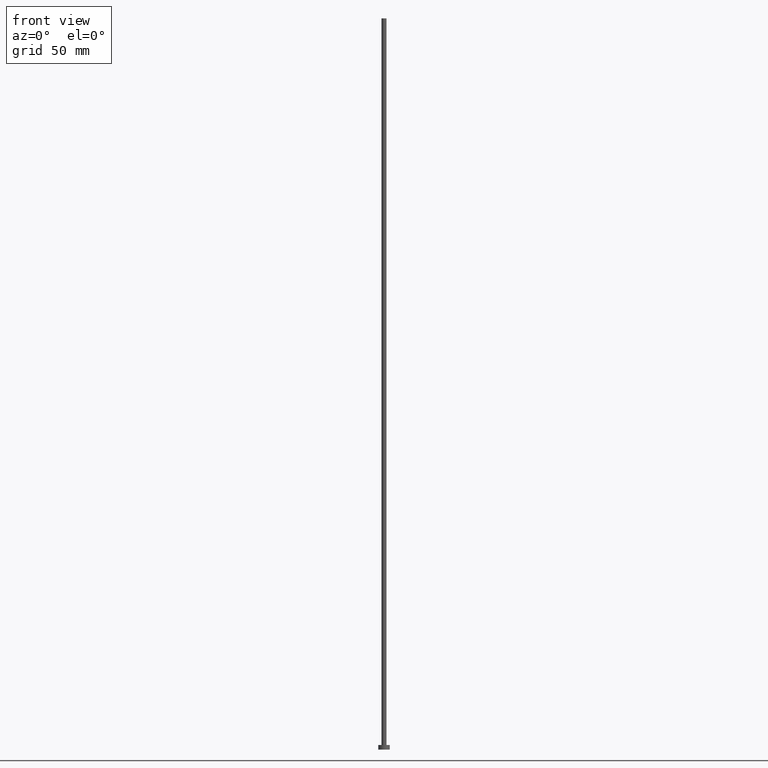
[diagram: clean part render]
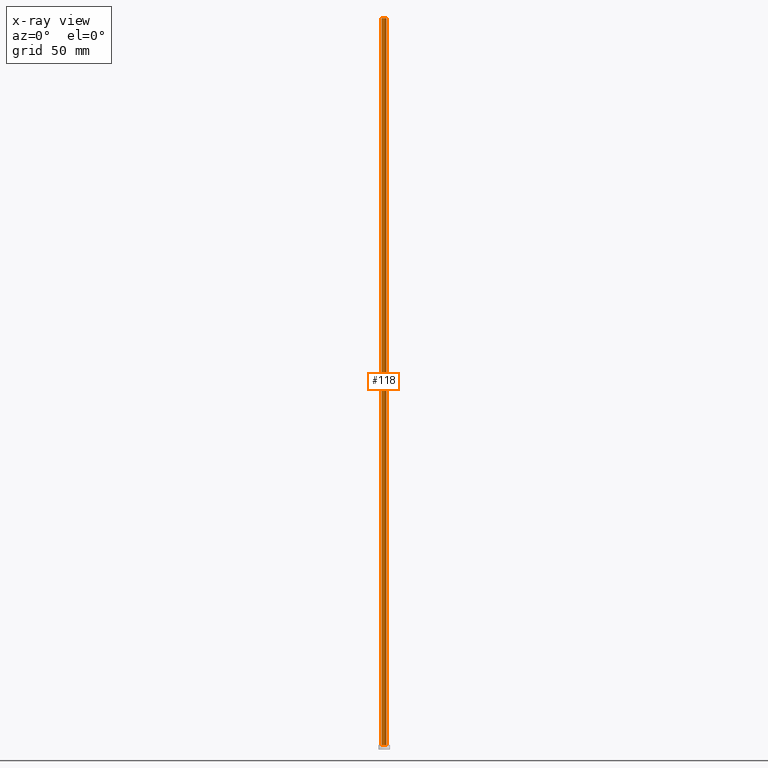
[diagram: x-ray — body ghosted, one internal face saturated and labeled with its STEP entity id]
A machine part, front view, then the same camera in x-ray: the body is ghosted and one INTERNAL B-rep face — a face not visible from any outside direction — is saturated and labeled: STEP entity #118.
In plain terms, the highlighted cylindrical surface (edge-blend (fillet) strip) has radius 1.1 mm, axis along (-0, -0, -1).
Its self-contained STEP definition (entity closure, byte-faithful):
#6 = FACE_OUTER_BOUND ( 'NONE', #230, .T. ) ;
#8 = CARTESIAN_POINT ( 'NONE',  ( 1.100000000000000089, 1.347111479062088503E-16, 2.000000000000000000 ) ) ;
#14 = CARTESIAN_POINT ( 'NONE',  ( -1.100000000000000089, 0.000000000000000000, 2.000000000000000000 ) ) ;
#32 = CIRCLE ( 'NONE', #179, 1.100000000000000089 ) ;
#53 = EDGE_CURVE ( 'NONE', #119, #73, #78, .T. ) ;
#56 = DIRECTION ( 'NONE',  ( -0.000000000000000000, -0.000000000000000000, -1.000000000000000000 ) ) ;
#59 = ORIENTED_EDGE ( 'NONE', *, *, #53, .T. ) ;
#60 = CIRCLE ( 'NONE', #242, 1.100000000000000089 ) ;
#67 = EDGE_CURVE ( 'NONE', #119, #128, #32, .T. ) ;
#73 = VERTEX_POINT ( 'NONE', #8 ) ;
#74 = ORIENTED_EDGE ( 'NONE', *, *, #67, .F. ) ;
#78 = LINE ( 'NONE', #156, #188 ) ;
#79 = EDGE_CURVE ( 'NONE', #73, #159, #60, .T. ) ;
#80 = CYLINDRICAL_SURFACE ( 'NONE', #99, 1.100000000000000089 ) ;
#82 = CARTESIAN_POINT ( 'NONE',  ( 0.000000000000000000, 0.000000000000000000, 315.0000000000000000 ) ) ;
#84 = CARTESIAN_POINT ( 'NONE',  ( 0.000000000000000000, 0.000000000000000000, 2.000000000000000000 ) ) ;
#86 = CARTESIAN_POINT ( 'NONE',  ( -1.100000000000000089, 0.000000000000000000, 315.0000000000000000 ) ) ;
#93 = VECTOR ( 'NONE', #121, 1000.000000000000000 ) ;
#99 = AXIS2_PLACEMENT_3D ( 'NONE', #157, #204, #129 ) ;
#107 = LINE ( 'NONE', #189, #93 ) ;
#115 = ORIENTED_EDGE ( 'NONE', *, *, #79, .T. ) ;
#118 = ADVANCED_FACE ( 'NONE', ( #6 ), #80, .T. ) ;
#119 = VERTEX_POINT ( 'NONE', #245 ) ;
#121 = DIRECTION ( 'NONE',  ( -0.000000000000000000, -0.000000000000000000, -1.000000000000000000 ) ) ;
#128 = VERTEX_POINT ( 'NONE', #86 ) ;
#129 = DIRECTION ( 'NONE',  ( -1.000000000000000000, 0.000000000000000000, 0.000000000000000000 ) ) ;
#145 = EDGE_CURVE ( 'NONE', #128, #159, #107, .T. ) ;
#156 = CARTESIAN_POINT ( 'NONE',  ( 1.100000000000000089, 1.347111479062088503E-16, 315.0000000000000000 ) ) ;
#157 = CARTESIAN_POINT ( 'NONE',  ( 0.000000000000000000, 0.000000000000000000, 315.0000000000000000 ) ) ;
#159 = VERTEX_POINT ( 'NONE', #14 ) ;
#161 = DIRECTION ( 'NONE',  ( 0.000000000000000000, 0.000000000000000000, 1.000000000000000000 ) ) ;
#162 = ORIENTED_EDGE ( 'NONE', *, *, #145, .F. ) ;
#179 = AXIS2_PLACEMENT_3D ( 'NONE', #82, #239, #185 ) ;
#185 = DIRECTION ( 'NONE',  ( 1.000000000000000000, 0.000000000000000000, 0.000000000000000000 ) ) ;
#188 = VECTOR ( 'NONE', #56, 1000.000000000000000 ) ;
#189 = CARTESIAN_POINT ( 'NONE',  ( -1.100000000000000089, 0.000000000000000000, 315.0000000000000000 ) ) ;
#204 = DIRECTION ( 'NONE',  ( -0.000000000000000000, -0.000000000000000000, -1.000000000000000000 ) ) ;
#230 = EDGE_LOOP ( 'NONE', ( #74, #59, #115, #162 ) ) ;
#239 = DIRECTION ( 'NONE',  ( 0.000000000000000000, 0.000000000000000000, 1.000000000000000000 ) ) ;
#241 = DIRECTION ( 'NONE',  ( 1.000000000000000000, 0.000000000000000000, 0.000000000000000000 ) ) ;
#242 = AXIS2_PLACEMENT_3D ( 'NONE', #84, #161, #241 ) ;
#245 = CARTESIAN_POINT ( 'NONE',  ( 1.100000000000000089, 1.347111479062088503E-16, 315.0000000000000000 ) ) ;